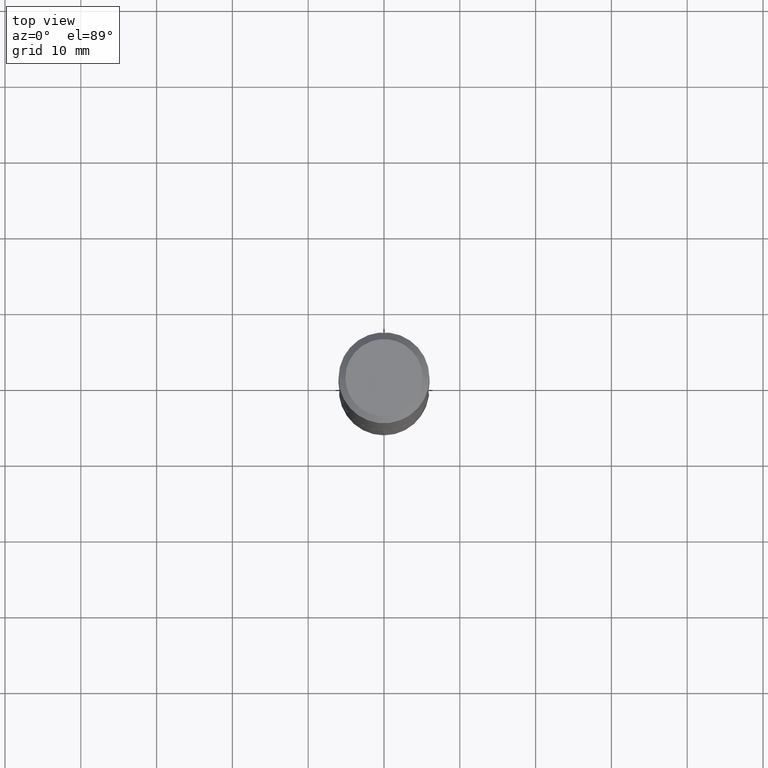
[diagram: clean part render]
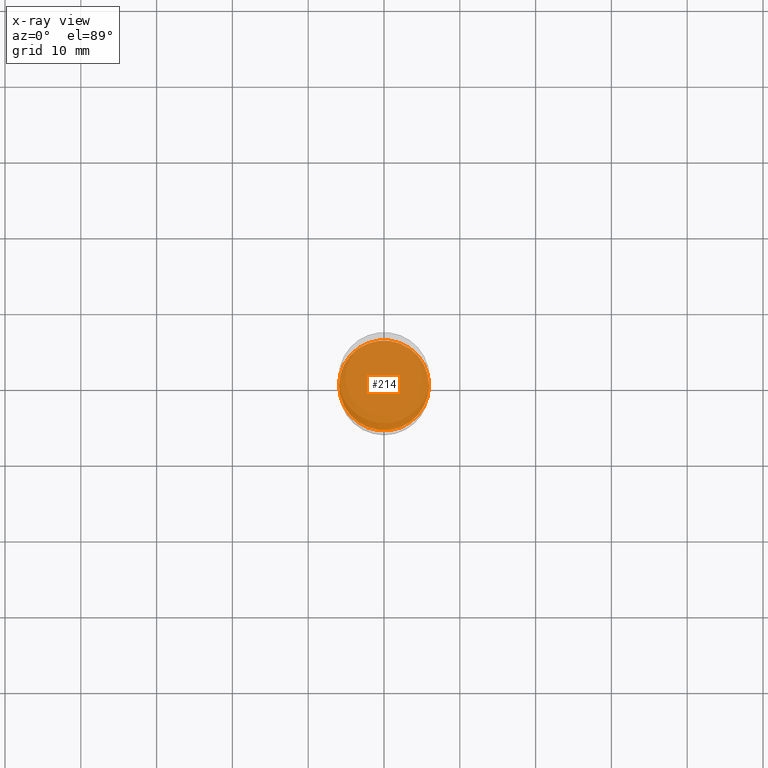
[diagram: x-ray — body ghosted, one internal face saturated and labeled with its STEP entity id]
A machine part, top view, then the same camera in x-ray: the body is ghosted and one INTERNAL B-rep face — a face not visible from any outside direction — is saturated and labeled: STEP entity #214.
In plain terms, the highlighted planar face has unit normal (-0, 0, 1).
Its self-contained STEP definition (entity closure, byte-faithful):
#8 = CIRCLE ( 'NONE', #310, 0.2337500000000000133 ) ;
#14 = EDGE_CURVE ( 'NONE', #315, #244, #8, .T. ) ;
#25 = CARTESIAN_POINT ( 'NONE',  ( 5.725331569040642181E-29, -8.174256110499573321E-15, -2.341200000000000170 ) ) ;
#55 = CARTESIAN_POINT ( 'NONE',  ( 0.2337500000000000133, -9.806523636408736745E-15, -2.341200000000000170 ) ) ;
#88 = DIRECTION ( 'NONE',  ( 1.000000000000000000, -6.982962677686265922E-15, 4.876176775795935793E-29 ) ) ;
#89 = PLANE ( 'NONE',  #237 ) ;
#140 = ORIENTED_EDGE ( 'NONE', *, *, #288, .F. ) ;
#153 = DIRECTION ( 'NONE',  ( 1.000000000000000000, -6.982962677686262766E-15, 0.000000000000000000 ) ) ;
#164 = CIRCLE ( 'NONE', #212, 0.2337500000000000133 ) ;
#165 = CARTESIAN_POINT ( 'NONE',  ( 5.725331569040642181E-29, -8.174256110499573321E-15, -2.341200000000000170 ) ) ;
#168 = DIRECTION ( 'NONE',  ( -2.445468806185136597E-29, 3.491481338843145583E-15, 1.000000000000000000 ) ) ;
#177 = CARTESIAN_POINT ( 'NONE',  ( -0.2337500000000000133, -6.510713238486227841E-15, -2.341200000000000170 ) ) ;
#212 = AXIS2_PLACEMENT_3D ( 'NONE', #25, #168, #314 ) ;
#214 = ADVANCED_FACE ( 'NONE', ( #351 ), #89, .F. ) ;
#229 = DIRECTION ( 'NONE',  ( -2.445468806185136597E-29, 3.491481338843145583E-15, 1.000000000000000000 ) ) ;
#237 = AXIS2_PLACEMENT_3D ( 'NONE', #165, #419, #88 ) ;
#244 = VERTEX_POINT ( 'NONE', #55 ) ;
#253 = EDGE_LOOP ( 'NONE', ( #140, #376 ) ) ;
#288 = EDGE_CURVE ( 'NONE', #244, #315, #164, .T. ) ;
#310 = AXIS2_PLACEMENT_3D ( 'NONE', #373, #229, #153 ) ;
#314 = DIRECTION ( 'NONE',  ( 1.000000000000000000, -6.982962677686262766E-15, 0.000000000000000000 ) ) ;
#315 = VERTEX_POINT ( 'NONE', #177 ) ;
#351 = FACE_OUTER_BOUND ( 'NONE', #253, .T. ) ;
#373 = CARTESIAN_POINT ( 'NONE',  ( 5.725331569040642181E-29, -8.174256110499573321E-15, -2.341200000000000170 ) ) ;
#376 = ORIENTED_EDGE ( 'NONE', *, *, #14, .F. ) ;
#419 = DIRECTION ( 'NONE',  ( -2.438088387897960049E-29, 3.491481338843145188E-15, 1.000000000000000000 ) ) ;